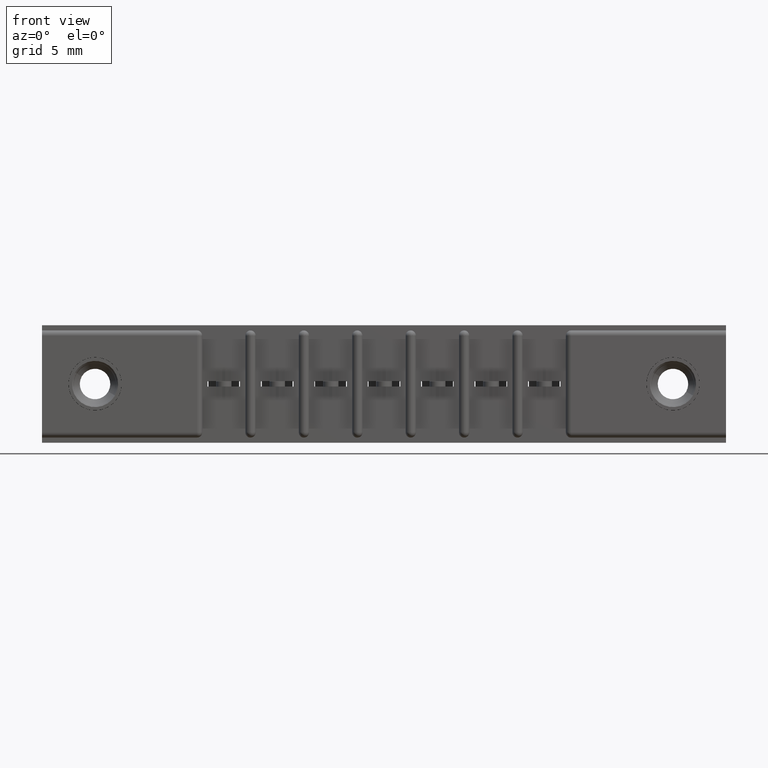
[diagram: clean part render]
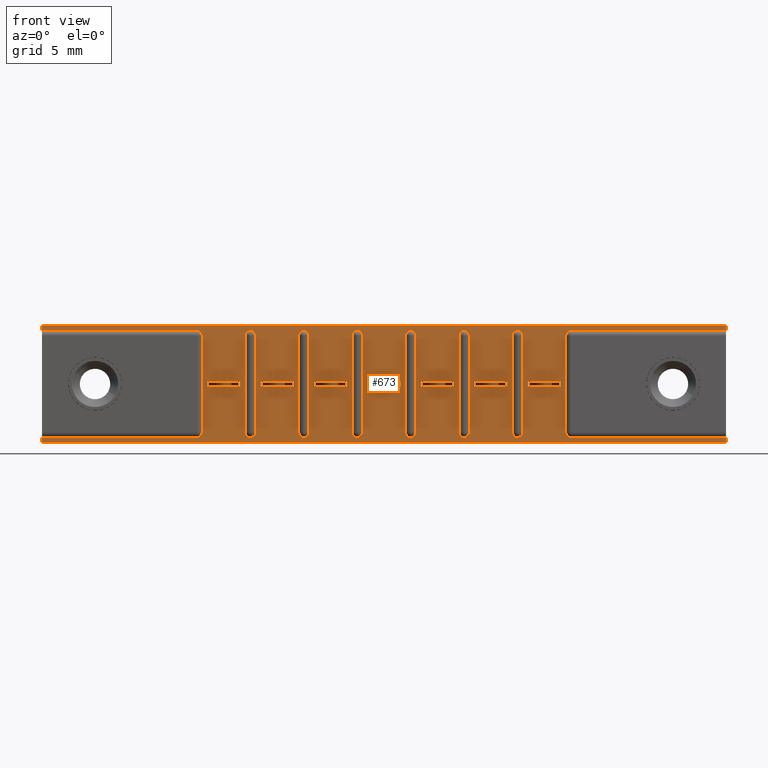
[diagram: same view with one face highlighted and labeled with its STEP entity id]
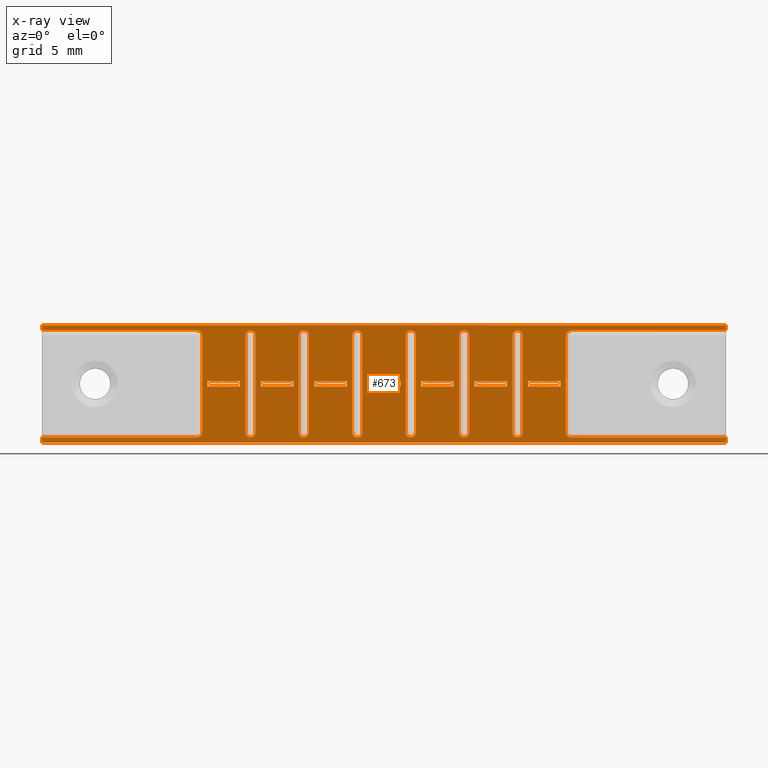
[diagram: x-ray of the same camera — body ghosted, the highlighted face saturated]
A machine part, front view. The second image highlights one B-rep face of the part: STEP entity #673.
The next image is the same camera in x-ray: the body ghosted, the highlighted face saturated — about 0% of this face is hidden behind the body in this view.
In plain terms, the highlighted planar face has unit normal (0, 1, 0).
Its self-contained STEP definition (entity closure, byte-faithful):
#2 = ORIENTED_EDGE ( 'NONE', *, *, #10643, .T. ) ;
#5 = ORIENTED_EDGE ( 'NONE', *, *, #9525, .T. ) ;
#19 = DIRECTION ( 'NONE',  ( 0.0000000000000000000, 0.0000000000000000000, 1.000000000000000000 ) ) ;
#44 = CARTESIAN_POINT ( 'NONE',  ( 0.6090000000000005400, 0.03100000000000000000, -0.3130000000000000600 ) ) ;
#121 = DIRECTION ( 'NONE',  ( 0.0000000000000000000, 1.000000000000000000, 0.0000000000000000000 ) ) ;
#143 = ORIENTED_EDGE ( 'NONE', *, *, #9650, .T. ) ;
#205 = VERTEX_POINT ( 'NONE', #3968 ) ;
#206 = DIRECTION ( 'NONE',  ( 0.0000000000000000000, -0.0000000000000000000, 1.000000000000000000 ) ) ;
#223 = CARTESIAN_POINT ( 'NONE',  ( 1.998000000000000000, 0.03100000000000000000, -0.3280000000000000100 ) ) ;
#233 = ORIENTED_EDGE ( 'NONE', *, *, #10808, .F. ) ;
#294 = DIRECTION ( 'NONE',  ( -1.000000000000000000, -0.0000000000000000000, -0.0000000000000000000 ) ) ;
#305 = VERTEX_POINT ( 'NONE', #1757 ) ;
#311 = DIRECTION ( 'NONE',  ( 1.000000000000000000, -0.0000000000000000000, 0.0000000000000000000 ) ) ;
#335 = CARTESIAN_POINT ( 'NONE',  ( 0.4680000000000005800, 0.03100000000000002400, -0.3280000000000002400 ) ) ;
#356 = DIRECTION ( 'NONE',  ( 0.0000000000000000000, -0.0000000000000000000, 1.000000000000000000 ) ) ;
#357 = VECTOR ( 'NONE', #11683, 39.37007874015748100 ) ;
#367 = ORIENTED_EDGE ( 'NONE', *, *, #9284, .T. ) ;
#382 = FACE_BOUND ( 'NONE', #3022, .T. ) ;
#426 = DIRECTION ( 'NONE',  ( -1.000000000000000000, -0.0000000000000000000, -0.0000000000000000000 ) ) ;
#457 = DIRECTION ( 'NONE',  ( 1.000000000000000000, -0.0000000000000000000, 0.0000000000000000000 ) ) ;
#464 = ORIENTED_EDGE ( 'NONE', *, *, #10022, .T. ) ;
#519 = ORIENTED_EDGE ( 'NONE', *, *, #9113, .T. ) ;
#522 = ORIENTED_EDGE ( 'NONE', *, *, #9863, .T. ) ;
#540 = LINE ( 'NONE', #11960, #5749 ) ;
#541 = CARTESIAN_POINT ( 'NONE',  ( 1.389000000000000700, 0.03100000000000000000, -0.3130000000000000600 ) ) ;
#564 = CARTESIAN_POINT ( 'NONE',  ( 0.5940000000000004200, 0.03100000000000002400, -0.3130000000000000600 ) ) ;
#570 = VECTOR ( 'NONE', #5691, 39.37007874015748100 ) ;
#622 = VERTEX_POINT ( 'NONE', #3373 ) ;
#627 = VERTEX_POINT ( 'NONE', #6545 ) ;
#635 = DIRECTION ( 'NONE',  ( 6.545961646160369700E-016, 0.0000000000000000000, -1.000000000000000000 ) ) ;
#639 = AXIS2_PLACEMENT_3D ( 'NONE', #5846, #11942, #6824 ) ;
#650 = VERTEX_POINT ( 'NONE', #7248 ) ;
#673 = ADVANCED_FACE ( 'NONE', ( #1514, #8721, #1137, #4261, #6235, #3679, #752, #10703, #8424, #5928, #3376, #382, #10483, #8114 ), #6596, .F. ) ;
#701 = ORIENTED_EDGE ( 'NONE', *, *, #8863, .T. ) ;
#730 = LINE ( 'NONE', #10893, #10690 ) ;
#752 = FACE_BOUND ( 'NONE', #2224, .T. ) ;
#766 = DIRECTION ( 'NONE',  ( 1.000000000000000000, -0.0000000000000000000, 0.0000000000000000000 ) ) ;
#819 = DIRECTION ( 'NONE',  ( 0.0000000000000000000, -0.0000000000000000000, 1.000000000000000000 ) ) ;
#910 = LINE ( 'NONE', #8672, #10569 ) ;
#933 = AXIS2_PLACEMENT_3D ( 'NONE', #5597, #11757, #6573 ) ;
#961 = DIRECTION ( 'NONE',  ( 0.0000000000000000000, 0.0000000000000000000, 1.000000000000000000 ) ) ;
#969 = VERTEX_POINT ( 'NONE', #7689 ) ;
#970 = ORIENTED_EDGE ( 'NONE', *, *, #11107, .F. ) ;
#1027 = CARTESIAN_POINT ( 'NONE',  ( 1.998000000000000000, 0.03100000000000000000, -0.3430000000000000300 ) ) ;
#1048 = DIRECTION ( 'NONE',  ( 0.0000000000000000000, 1.000000000000000000, 0.0000000000000000000 ) ) ;
#1113 = VERTEX_POINT ( 'NONE', #4548 ) ;
#1115 = LINE ( 'NONE', #4515, #5903 ) ;
#1117 = DIRECTION ( 'NONE',  ( 6.545961646160369700E-016, 0.0000000000000000000, -1.000000000000000000 ) ) ;
#1130 = CIRCLE ( 'NONE', #11532, 0.01499999999999999900 ) ;
#1137 = FACE_BOUND ( 'NONE', #2389, .T. ) ;
#1140 = ORIENTED_EDGE ( 'NONE', *, *, #9187, .T. ) ;
#1165 = VERTEX_POINT ( 'NONE', #3881 ) ;
#1183 = ORIENTED_EDGE ( 'NONE', *, *, #9221, .T. ) ;
#1212 = ORIENTED_EDGE ( 'NONE', *, *, #11273, .F. ) ;
#1262 = DIRECTION ( 'NONE',  ( 0.0000000000000000000, 0.0000000000000000000, 1.000000000000000000 ) ) ;
#1312 = VERTEX_POINT ( 'NONE', #6048 ) ;
#1331 = CIRCLE ( 'NONE', #4531, 0.01499999999999999900 ) ;
#1336 = DIRECTION ( 'NONE',  ( 1.000000000000000000, -0.0000000000000000000, 0.0000000000000000000 ) ) ;
#1343 = CARTESIAN_POINT ( 'NONE',  ( 0.4835000000000015400, 0.03100000000000000000, -0.1640000000000003700 ) ) ;
#1349 = VERTEX_POINT ( 'NONE', #3587 ) ;
#1415 = CARTESIAN_POINT ( 'NONE',  ( 0.7345000000000017100, 0.03100000000000002400, -0.08150000000000035000 ) ) ;
#1418 = VERTEX_POINT ( 'NONE', #8533 ) ;
#1443 = DIRECTION ( 'NONE',  ( 0.0000000000000000000, 1.000000000000000000, 0.0000000000000000000 ) ) ;
#1461 = VERTEX_POINT ( 'NONE', #8107 ) ;
#1491 = VERTEX_POINT ( 'NONE', #3096 ) ;
#1507 = ORIENTED_EDGE ( 'NONE', *, *, #9390, .T. ) ;
#1514 = FACE_OUTER_BOUND ( 'NONE', #1542, .T. ) ;
#1530 = VERTEX_POINT ( 'NONE', #3849 ) ;
#1533 = DIRECTION ( 'NONE',  ( 0.0000000000000000000, 1.000000000000000000, 0.0000000000000000000 ) ) ;
#1538 = AXIS2_PLACEMENT_3D ( 'NONE', #12093, #7043, #961 ) ;
#1542 = EDGE_LOOP ( 'NONE', ( #3111, #3841, #6827, #5054, #7142, #1713, #7486, #7449, #10775, #10521, #519, #7524, #7073, #3001, #10372, #5021 ) ) ;
#1544 = DIRECTION ( 'NONE',  ( 0.0000000000000000000, 1.000000000000000000, 0.0000000000000000000 ) ) ;
#1553 = EDGE_LOOP ( 'NONE', ( #3366, #464, #4614, #2048, #9297, #6777 ) ) ;
#1574 = CARTESIAN_POINT ( 'NONE',  ( 1.404000000000000400, 0.03100000000000002400, -0.02999999999999998800 ) ) ;
#1646 = DIRECTION ( 'NONE',  ( 0.0000000000000000000, 1.000000000000000000, 0.0000000000000000000 ) ) ;
#1662 = CARTESIAN_POINT ( 'NONE',  ( 0.5940000000000005300, 0.03100000000000002400, -0.02999999999999995400 ) ) ;
#1664 = VERTEX_POINT ( 'NONE', #2689 ) ;
#1685 = CIRCLE ( 'NONE', #11671, 0.01500000000000001200 ) ;
#1713 = ORIENTED_EDGE ( 'NONE', *, *, #8362, .F. ) ;
#1744 = DIRECTION ( 'NONE',  ( 0.0000000000000000000, 0.0000000000000000000, 1.000000000000000000 ) ) ;
#1755 = CARTESIAN_POINT ( 'NONE',  ( 0.6395000000000015100, 0.03100000000000000000, -0.1790000000000003500 ) ) ;
#1757 = CARTESIAN_POINT ( 'NONE',  ( 1.218000000000000400, 0.03100000000000002400, -0.02999999999999995400 ) ) ;
#1777 = VERTEX_POINT ( 'NONE', #1574 ) ;
#1804 = VERTEX_POINT ( 'NONE', #10289 ) ;
#1816 = CARTESIAN_POINT ( 'NONE',  ( 1.202500000000001700, 0.03100000000000002400, -0.08150000000000035000 ) ) ;
#1831 = AXIS2_PLACEMENT_3D ( 'NONE', #7482, #1544, #8407 ) ;
#1846 = VECTOR ( 'NONE', #1336, 39.37007874015748100 ) ;
#1863 = CARTESIAN_POINT ( 'NONE',  ( 0.0000000000000000000, 0.03100000000000000000, -0.01499999999999997700 ) ) ;
#1938 = AXIS2_PLACEMENT_3D ( 'NONE', #7112, #1048, #8003 ) ;
#1944 = EDGE_CURVE ( 'NONE', #205, #5186, #5416, .T. ) ;
#2022 = VECTOR ( 'NONE', #4718, 39.37007874015748100 ) ;
#2048 = ORIENTED_EDGE ( 'NONE', *, *, #10093, .T. ) ;
#2051 = VECTOR ( 'NONE', #9254, 39.37007874015748100 ) ;
#2085 = CARTESIAN_POINT ( 'NONE',  ( 1.233000000000000500, 0.03100000000000000000, -0.3130000000000000600 ) ) ;
#2098 = CARTESIAN_POINT ( 'NONE',  ( 1.046500000000001500, 0.03100000000000002400, -0.1640000000000003700 ) ) ;
#2117 = VERTEX_POINT ( 'NONE', #9625 ) ;
#2170 = DIRECTION ( 'NONE',  ( 0.0000000000000000000, 1.000000000000000000, 0.0000000000000000000 ) ) ;
#2190 = VECTOR ( 'NONE', #11514, 39.37007874015748100 ) ;
#2204 = VERTEX_POINT ( 'NONE', #2897 ) ;
#2219 = DIRECTION ( 'NONE',  ( 0.0000000000000000000, 1.000000000000000000, 0.0000000000000000000 ) ) ;
#2224 = EDGE_LOOP ( 'NONE', ( #4431, #6774, #9994, #2, #2495, #3577 ) ) ;
#2278 = EDGE_LOOP ( 'NONE', ( #4900, #1140, #6701, #7274, #1183, #5405 ) ) ;
#2298 = VERTEX_POINT ( 'NONE', #11114 ) ;
#2300 = CARTESIAN_POINT ( 'NONE',  ( 1.077000000000000200, 0.03100000000000002400, -0.3130000000000000600 ) ) ;
#2316 = CARTESIAN_POINT ( 'NONE',  ( 1.046500000000001500, 0.03100000000000000000, -0.1790000000000003500 ) ) ;
#2337 = EDGE_LOOP ( 'NONE', ( #3306, #4734, #5, #4953, #7012, #7870 ) ) ;
#2342 = VECTOR ( 'NONE', #8465, 39.37007874015748100 ) ;
#2356 = LINE ( 'NONE', #10245, #6841 ) ;
#2363 = ORIENTED_EDGE ( 'NONE', *, *, #11498, .T. ) ;
#2377 = EDGE_LOOP ( 'NONE', ( #6161, #9739, #11740, #11410 ) ) ;
#2389 = EDGE_LOOP ( 'NONE', ( #10326, #367, #6653, #11500, #2891, #1507 ) ) ;
#2413 = LINE ( 'NONE', #223, #10012 ) ;
#2438 = CARTESIAN_POINT ( 'NONE',  ( 0.9360000000000006100, 0.03100000000000002400, -0.3280000000000002400 ) ) ;
#2471 = ORIENTED_EDGE ( 'NONE', *, *, #11002, .F. ) ;
#2487 = VERTEX_POINT ( 'NONE', #12215 ) ;
#2495 = ORIENTED_EDGE ( 'NONE', *, *, #10719, .T. ) ;
#2502 = DIRECTION ( 'NONE',  ( 1.000000000000000000, 0.0000000000000000000, 0.0000000000000000000 ) ) ;
#2506 = CARTESIAN_POINT ( 'NONE',  ( 1.077000000000000400, 0.03100000000000000000, -0.01499999999999997700 ) ) ;
#2512 = VECTOR ( 'NONE', #9674, 39.37007874015748100 ) ;
#2538 = CIRCLE ( 'NONE', #1538, 0.01500000000000001200 ) ;
#2579 = DIRECTION ( 'NONE',  ( 0.0000000000000000000, -0.0000000000000000000, 1.000000000000000000 ) ) ;
#2610 = ORIENTED_EDGE ( 'NONE', *, *, #8923, .F. ) ;
#2689 = CARTESIAN_POINT ( 'NONE',  ( 0.4835000000000015400, 0.03100000000000002400, -0.1640000000000003700 ) ) ;
#2690 = VECTOR ( 'NONE', #6604, 39.37007874015748100 ) ;
#2719 = VECTOR ( 'NONE', #2502, 39.37007874015748100 ) ;
#2726 = ORIENTED_EDGE ( 'NONE', *, *, #9893, .T. ) ;
#2737 = AXIS2_PLACEMENT_3D ( 'NONE', #6359, #121, #7305 ) ;
#2743 = VERTEX_POINT ( 'NONE', #9920 ) ;
#2767 = CARTESIAN_POINT ( 'NONE',  ( 0.8905000000000016200, 0.03100000000000002400, -0.1640000000000003700 ) ) ;
#2801 = DIRECTION ( 'NONE',  ( 0.0000000000000000000, 1.000000000000000000, 0.0000000000000000000 ) ) ;
#2813 = EDGE_LOOP ( 'NONE', ( #5012, #2471, #3517, #970 ) ) ;
#2817 = CARTESIAN_POINT ( 'NONE',  ( 1.374000000000000100, 0.03100000000000002400, -0.3130000000000000600 ) ) ;
#2831 = CARTESIAN_POINT ( 'NONE',  ( 1.389000000000000200, 0.03100000000000000000, -0.3280000000000000100 ) ) ;
#2832 = VECTOR ( 'NONE', #4892, 39.37007874015748100 ) ;
#2848 = CARTESIAN_POINT ( 'NONE',  ( 1.062000000000000500, 0.03100000000000002400, -0.02999999999999995400 ) ) ;
#2869 = VECTOR ( 'NONE', #819, 39.37007874015748100 ) ;
#2880 = ORIENTED_EDGE ( 'NONE', *, *, #11510, .F. ) ;
#2891 = ORIENTED_EDGE ( 'NONE', *, *, #9356, .T. ) ;
#2897 = CARTESIAN_POINT ( 'NONE',  ( 0.7650000000000004600, 0.03100000000000000000, -0.3280000000000000100 ) ) ;
#2899 = LINE ( 'NONE', #11325, #10114 ) ;
#2915 = DIRECTION ( 'NONE',  ( -1.000000000000000000, 0.0000000000000000000, -0.0000000000000000000 ) ) ;
#2926 = VECTOR ( 'NONE', #8293, 39.37007874015748100 ) ;
#2932 = CARTESIAN_POINT ( 'NONE',  ( 0.7650000000000004600, 0.03100000000000000000, -0.3130000000000000600 ) ) ;
#3001 = ORIENTED_EDGE ( 'NONE', *, *, #8306, .T. ) ;
#3005 = AXIS2_PLACEMENT_3D ( 'NONE', #7983, #2170, #8922 ) ;
#3022 = EDGE_LOOP ( 'NONE', ( #4370, #5767, #9192, #6509 ) ) ;
#3045 = CARTESIAN_POINT ( 'NONE',  ( 0.7345000000000017100, 0.03100000000000000000, -0.1790000000000003500 ) ) ;
#3049 = CIRCLE ( 'NONE', #6664, 0.01500000000000001200 ) ;
#3067 = VERTEX_POINT ( 'NONE', #3045 ) ;
#3068 = CARTESIAN_POINT ( 'NONE',  ( 1.998000000000000000, 0.03100000000000000000, 0.0000000000000000000 ) ) ;
#3096 = CARTESIAN_POINT ( 'NONE',  ( 0.7955000000000015400, 0.03100000000000000000, -0.1790000000000003500 ) ) ;
#3111 = ORIENTED_EDGE ( 'NONE', *, *, #9021, .T. ) ;
#3139 = CARTESIAN_POINT ( 'NONE',  ( 0.7800000000000004700, 0.03100000000000002400, -0.02999999999999998800 ) ) ;
#3158 = DIRECTION ( 'NONE',  ( 0.0000000000000000000, 0.0000000000000000000, 1.000000000000000000 ) ) ;
#3222 = LINE ( 'NONE', #11117, #10374 ) ;
#3264 = DIRECTION ( 'NONE',  ( 0.0000000000000000000, 0.0000000000000000000, 1.000000000000000000 ) ) ;
#3306 = ORIENTED_EDGE ( 'NONE', *, *, #9412, .T. ) ;
#3312 = CARTESIAN_POINT ( 'NONE',  ( 1.374000000000000100, 0.03100000000000002400, -0.02999999999999995400 ) ) ;
#3366 = ORIENTED_EDGE ( 'NONE', *, *, #9942, .T. ) ;
#3373 = CARTESIAN_POINT ( 'NONE',  ( 1.202500000000001700, 0.03100000000000000000, -0.1790000000000003500 ) ) ;
#3376 = FACE_BOUND ( 'NONE', #2813, .T. ) ;
#3377 = VERTEX_POINT ( 'NONE', #11376 ) ;
#3381 = DIRECTION ( 'NONE',  ( 0.0000000000000000000, 0.0000000000000000000, 1.000000000000000000 ) ) ;
#3429 = CARTESIAN_POINT ( 'NONE',  ( 0.4835000000000015400, 0.03100000000000000000, -0.1790000000000003500 ) ) ;
#3444 = VERTEX_POINT ( 'NONE', #6345 ) ;
#3463 = CARTESIAN_POINT ( 'NONE',  ( 0.9210000000000004800, 0.03100000000000000000, -0.02999999999999997800 ) ) ;
#3486 = EDGE_LOOP ( 'NONE', ( #2610, #4685, #701, #4508 ) ) ;
#3517 = ORIENTED_EDGE ( 'NONE', *, *, #11019, .T. ) ;
#3523 = CARTESIAN_POINT ( 'NONE',  ( 0.9515000000000015700, 0.03100000000000002400, -0.1640000000000003700 ) ) ;
#3539 = VERTEX_POINT ( 'NONE', #6333 ) ;
#3550 = EDGE_LOOP ( 'NONE', ( #11086, #7913, #6622, #233 ) ) ;
#3577 = ORIENTED_EDGE ( 'NONE', *, *, #10733, .T. ) ;
#3587 = CARTESIAN_POINT ( 'NONE',  ( 1.062000000000000300, 0.03100000000000002400, -0.3130000000000000600 ) ) ;
#3596 = CARTESIAN_POINT ( 'NONE',  ( 1.419500000000001500, 0.03100000000000002400, -0.08150000000000035000 ) ) ;
#3614 = CARTESIAN_POINT ( 'NONE',  ( 1.998000000000000000, 0.03100000000000000000, 0.0000000000000000000 ) ) ;
#3620 = VERTEX_POINT ( 'NONE', #7088 ) ;
#3660 = LINE ( 'NONE', #11715, #10233 ) ;
#3673 = LINE ( 'NONE', #2438, #6230 ) ;
#3674 = ORIENTED_EDGE ( 'NONE', *, *, #11364, .F. ) ;
#3679 = FACE_BOUND ( 'NONE', #1553, .T. ) ;
#3721 = ORIENTED_EDGE ( 'NONE', *, *, #9876, .T. ) ;
#3750 = CARTESIAN_POINT ( 'NONE',  ( 1.046500000000001500, 0.03100000000000002400, -0.08150000000000035000 ) ) ;
#3768 = CARTESIAN_POINT ( 'NONE',  ( 0.7650000000000004600, 0.03100000000000000000, -0.02999999999999997800 ) ) ;
#3821 = VECTOR ( 'NONE', #6766, 39.37007874015748100 ) ;
#3841 = ORIENTED_EDGE ( 'NONE', *, *, #9033, .T. ) ;
#3843 = CIRCLE ( 'NONE', #5840, 0.01500000000000001200 ) ;
#3849 = CARTESIAN_POINT ( 'NONE',  ( 0.5785000000000016800, 0.03100000000000000000, -0.1790000000000003500 ) ) ;
#3858 = DIRECTION ( 'NONE',  ( 0.0000000000000000000, 1.000000000000000000, 0.0000000000000000000 ) ) ;
#3862 = AXIS2_PLACEMENT_3D ( 'NONE', #3768, #10283, #4688 ) ;
#3869 = DIRECTION ( 'NONE',  ( 4.363974430773580900E-016, -0.0000000000000000000, 1.000000000000000000 ) ) ;
#3881 = CARTESIAN_POINT ( 'NONE',  ( 1.998000000000000000, 0.03100000000000000000, -0.01499999999999997700 ) ) ;
#3887 = LINE ( 'NONE', #6615, #8889 ) ;
#3889 = CARTESIAN_POINT ( 'NONE',  ( 0.4680000000000003600, 0.03100000000000002400, -0.02999999999999998800 ) ) ;
#3935 = AXIS2_PLACEMENT_3D ( 'NONE', #10982, #5609, #11761 ) ;
#3938 = DIRECTION ( 'NONE',  ( 0.0000000000000000000, 0.0000000000000000000, 1.000000000000000000 ) ) ;
#3942 = DIRECTION ( 'NONE',  ( 0.0000000000000000000, 1.000000000000000000, 0.0000000000000000000 ) ) ;
#3958 = CARTESIAN_POINT ( 'NONE',  ( 1.107500000000001700, 0.03100000000000002400, -0.08150000000000035000 ) ) ;
#3960 = LINE ( 'NONE', #3596, #6500 ) ;
#3968 = CARTESIAN_POINT ( 'NONE',  ( 1.998000000000000000, 0.03100000000000000000, 0.0000000000000000000 ) ) ;
#3974 = VECTOR ( 'NONE', #8294, 39.37007874015748100 ) ;
#4001 = VERTEX_POINT ( 'NONE', #1863 ) ;
#4008 = LINE ( 'NONE', #11030, #6250 ) ;
#4019 = AXIS2_PLACEMENT_3D ( 'NONE', #11444, #6183, #12171 ) ;
#4102 = LINE ( 'NONE', #1816, #9420 ) ;
#4109 = CIRCLE ( 'NONE', #639, 0.01500000000000001200 ) ;
#4119 = VERTEX_POINT ( 'NONE', #9704 ) ;
#4122 = VECTOR ( 'NONE', #10215, 39.37007874015748100 ) ;
#4195 = DIRECTION ( 'NONE',  ( 0.0000000000000000000, 1.000000000000000000, 0.0000000000000000000 ) ) ;
#4256 = VECTOR ( 'NONE', #9945, 39.37007874015748100 ) ;
#4261 = FACE_BOUND ( 'NONE', #2337, .T. ) ;
#4287 = AXIS2_PLACEMENT_3D ( 'NONE', #4618, #4195, #2579 ) ;
#4342 = VERTEX_POINT ( 'NONE', #11707 ) ;
#4370 = ORIENTED_EDGE ( 'NONE', *, *, #11118, .F. ) ;
#4375 = VECTOR ( 'NONE', #4811, 39.37007874015748100 ) ;
#4391 = VECTOR ( 'NONE', #635, 39.37007874015748100 ) ;
#4402 = LINE ( 'NONE', #5562, #11333 ) ;
#4404 = DIRECTION ( 'NONE',  ( 0.0000000000000000000, 0.0000000000000000000, 1.000000000000000000 ) ) ;
#4431 = ORIENTED_EDGE ( 'NONE', *, *, #10533, .T. ) ;
#4452 = CARTESIAN_POINT ( 'NONE',  ( 0.4835000000000015400, 0.03100000000000000000, -0.1790000000000003500 ) ) ;
#4467 = CARTESIAN_POINT ( 'NONE',  ( 0.6395000000000015100, 0.03100000000000000000, -0.1640000000000003700 ) ) ;
#4492 = CARTESIAN_POINT ( 'NONE',  ( 0.0000000000000000000, 0.03100000000000000000, -0.3430000000000000300 ) ) ;
#4508 = ORIENTED_EDGE ( 'NONE', *, *, #9000, .F. ) ;
#4512 = CARTESIAN_POINT ( 'NONE',  ( 0.0000000000000000000, 0.03100000000000000000, 0.0000000000000000000 ) ) ;
#4515 = CARTESIAN_POINT ( 'NONE',  ( 0.6395000000000017300, 0.03100000000000002400, -0.08150000000000035000 ) ) ;
#4531 = AXIS2_PLACEMENT_3D ( 'NONE', #10291, #4701, #11052 ) ;
#4547 = CIRCLE ( 'NONE', #4967, 0.01499999999999999900 ) ;
#4548 = CARTESIAN_POINT ( 'NONE',  ( 0.9210000000000004800, 0.03100000000000000000, -0.01499999999999997700 ) ) ;
#4554 = CARTESIAN_POINT ( 'NONE',  ( 0.8905000000000016200, 0.03100000000000002400, -0.08150000000000035000 ) ) ;
#4559 = LINE ( 'NONE', #7135, #7425 ) ;
#4599 = CARTESIAN_POINT ( 'NONE',  ( 1.077000000000000200, 0.03100000000000000000, -0.3280000000000000100 ) ) ;
#4614 = ORIENTED_EDGE ( 'NONE', *, *, #10089, .T. ) ;
#4616 = VERTEX_POINT ( 'NONE', #1755 ) ;
#4618 = CARTESIAN_POINT ( 'NONE',  ( 1.998000000000000000, 0.03100000000000000000, -0.3430000000000000300 ) ) ;
#4649 = DIRECTION ( 'NONE',  ( 4.363974430773580900E-016, -0.0000000000000000000, 1.000000000000000000 ) ) ;
#4652 = VERTEX_POINT ( 'NONE', #9557 ) ;
#4674 = LINE ( 'NONE', #11069, #2022 ) ;
#4685 = ORIENTED_EDGE ( 'NONE', *, *, #9020, .F. ) ;
#4688 = DIRECTION ( 'NONE',  ( 0.0000000000000000000, 0.0000000000000000000, 1.000000000000000000 ) ) ;
#4701 = DIRECTION ( 'NONE',  ( 0.0000000000000000000, 1.000000000000000000, 0.0000000000000000000 ) ) ;
#4702 = LINE ( 'NONE', #6448, #2051 ) ;
#4718 = DIRECTION ( 'NONE',  ( 0.0000000000000000000, -0.0000000000000000000, 1.000000000000000000 ) ) ;
#4725 = EDGE_LOOP ( 'NONE', ( #5879, #3674, #2363, #2880 ) ) ;
#4734 = ORIENTED_EDGE ( 'NONE', *, *, #9436, .T. ) ;
#4811 = DIRECTION ( 'NONE',  ( -1.000000000000000000, 0.0000000000000000000, -0.0000000000000000000 ) ) ;
#4843 = DIRECTION ( 'NONE',  ( 0.0000000000000000000, 1.000000000000000000, 0.0000000000000000000 ) ) ;
#4871 = CIRCLE ( 'NONE', #9372, 0.01500000000000001200 ) ;
#4892 = DIRECTION ( 'NONE',  ( -1.000000000000000000, -0.0000000000000000000, -0.0000000000000000000 ) ) ;
#4898 = VERTEX_POINT ( 'NONE', #8888 ) ;
#4900 = ORIENTED_EDGE ( 'NONE', *, *, #9163, .T. ) ;
#4901 = ORIENTED_EDGE ( 'NONE', *, *, #11197, .F. ) ;
#4924 = CARTESIAN_POINT ( 'NONE',  ( 1.404000000000000600, 0.03100000000000002400, -0.3130000000000000600 ) ) ;
#4953 = ORIENTED_EDGE ( 'NONE', *, *, #9527, .T. ) ;
#4967 = AXIS2_PLACEMENT_3D ( 'NONE', #8017, #2219, #8968 ) ;
#5012 = ORIENTED_EDGE ( 'NONE', *, *, #10951, .F. ) ;
#5021 = ORIENTED_EDGE ( 'NONE', *, *, #8419, .F. ) ;
#5046 = CIRCLE ( 'NONE', #9204, 0.01500000000000001200 ) ;
#5054 = ORIENTED_EDGE ( 'NONE', *, *, #9090, .T. ) ;
#5095 = VERTEX_POINT ( 'NONE', #11524 ) ;
#5112 = VERTEX_POINT ( 'NONE', #3429 ) ;
#5133 = CARTESIAN_POINT ( 'NONE',  ( 0.9360000000000005000, 0.03100000000000002400, -0.02999999999999998800 ) ) ;
#5135 = VERTEX_POINT ( 'NONE', #9078 ) ;
#5165 = CIRCLE ( 'NONE', #1938, 0.01499999999999999900 ) ;
#5180 = LINE ( 'NONE', #6066, #7411 ) ;
#5186 = VERTEX_POINT ( 'NONE', #10017 ) ;
#5272 = VERTEX_POINT ( 'NONE', #10132 ) ;
#5276 = CARTESIAN_POINT ( 'NONE',  ( 1.092000000000000500, 0.03100000000000002400, -0.3130000000000000600 ) ) ;
#5303 = LINE ( 'NONE', #10230, #7539 ) ;
#5307 = CARTESIAN_POINT ( 'NONE',  ( 1.062000000000000300, 0.03100000000000002400, -0.3280000000000002400 ) ) ;
#5332 = CARTESIAN_POINT ( 'NONE',  ( 1.514500000000001500, 0.03100000000000002400, -0.1640000000000003700 ) ) ;
#5405 = ORIENTED_EDGE ( 'NONE', *, *, #9226, .T. ) ;
#5413 = CARTESIAN_POINT ( 'NONE',  ( 0.6090000000000004300, 0.03100000000000002400, -0.3130000000000000600 ) ) ;
#5416 = LINE ( 'NONE', #3068, #2832 ) ;
#5440 = DIRECTION ( 'NONE',  ( -1.000000000000000000, 0.0000000000000000000, 0.0000000000000000000 ) ) ;
#5447 = VECTOR ( 'NONE', #766, 39.37007874015748100 ) ;
#5496 = LINE ( 'NONE', #4512, #12149 ) ;
#5502 = DIRECTION ( 'NONE',  ( 1.000000000000000000, -0.0000000000000000000, 0.0000000000000000000 ) ) ;
#5522 = DIRECTION ( 'NONE',  ( -1.000000000000000000, 0.0000000000000000000, -0.0000000000000000000 ) ) ;
#5543 = DIRECTION ( 'NONE',  ( 0.0000000000000000000, -0.0000000000000000000, 1.000000000000000000 ) ) ;
#5562 = CARTESIAN_POINT ( 'NONE',  ( 1.998000000000000000, 0.03100000000000000000, -0.01499999999999997700 ) ) ;
#5570 = CARTESIAN_POINT ( 'NONE',  ( 1.218000000000000400, 0.03100000000000002400, -0.3130000000000000600 ) ) ;
#5597 = CARTESIAN_POINT ( 'NONE',  ( 0.9210000000000003700, 0.03100000000000002400, -0.3130000000000000600 ) ) ;
#5607 = LINE ( 'NONE', #4554, #8097 ) ;
#5609 = DIRECTION ( 'NONE',  ( 0.0000000000000000000, 1.000000000000000000, 0.0000000000000000000 ) ) ;
#5636 = VERTEX_POINT ( 'NONE', #4924 ) ;
#5691 = DIRECTION ( 'NONE',  ( 6.545961646160369700E-016, 0.0000000000000000000, -1.000000000000000000 ) ) ;
#5749 = VECTOR ( 'NONE', #11202, 39.37007874015748100 ) ;
#5767 = ORIENTED_EDGE ( 'NONE', *, *, #11134, .F. ) ;
#5769 = CARTESIAN_POINT ( 'NONE',  ( 1.389000000000000200, 0.03100000000000002400, -0.3130000000000000600 ) ) ;
#5840 = AXIS2_PLACEMENT_3D ( 'NONE', #7556, #1646, #8486 ) ;
#5846 = CARTESIAN_POINT ( 'NONE',  ( 0.7650000000000004600, 0.03100000000000002400, -0.3130000000000000600 ) ) ;
#5871 = CARTESIAN_POINT ( 'NONE',  ( 0.8905000000000016200, 0.03100000000000000000, -0.1790000000000003500 ) ) ;
#5879 = ORIENTED_EDGE ( 'NONE', *, *, #11316, .F. ) ;
#5903 = VECTOR ( 'NONE', #206, 39.37007874015748100 ) ;
#5913 = CARTESIAN_POINT ( 'NONE',  ( 1.263500000000001400, 0.03100000000000000000, -0.1790000000000003500 ) ) ;
#5928 = FACE_BOUND ( 'NONE', #2377, .T. ) ;
#5993 = CARTESIAN_POINT ( 'NONE',  ( 1.514500000000001500, 0.03100000000000002400, -0.08150000000000035000 ) ) ;
#6038 = VERTEX_POINT ( 'NONE', #5570 ) ;
#6048 = CARTESIAN_POINT ( 'NONE',  ( 0.9060000000000003600, 0.03100000000000002400, -0.3130000000000000600 ) ) ;
#6052 = LINE ( 'NONE', #7807, #2512 ) ;
#6066 = CARTESIAN_POINT ( 'NONE',  ( 1.218000000000000400, 0.03100000000000002400, -0.3280000000000002400 ) ) ;
#6076 = CIRCLE ( 'NONE', #7742, 0.01499999999999999900 ) ;
#6161 = ORIENTED_EDGE ( 'NONE', *, *, #10828, .F. ) ;
#6183 = DIRECTION ( 'NONE',  ( 0.0000000000000000000, 1.000000000000000000, 0.0000000000000000000 ) ) ;
#6230 = VECTOR ( 'NONE', #9115, 39.37007874015748100 ) ;
#6235 = FACE_BOUND ( 'NONE', #6996, .T. ) ;
#6240 = LINE ( 'NONE', #7240, #10968 ) ;
#6241 = CARTESIAN_POINT ( 'NONE',  ( 1.077000000000000600, 0.03100000000000000000, -0.3130000000000000600 ) ) ;
#6250 = VECTOR ( 'NONE', #9391, 39.37007874015748100 ) ;
#6265 = CARTESIAN_POINT ( 'NONE',  ( 0.6240000000000005500, 0.03100000000000002400, -0.3280000000000002400 ) ) ;
#6333 = CARTESIAN_POINT ( 'NONE',  ( 1.263500000000001400, 0.03100000000000002400, -0.1640000000000003700 ) ) ;
#6345 = CARTESIAN_POINT ( 'NONE',  ( 0.6395000000000016200, 0.03100000000000002400, -0.1640000000000003700 ) ) ;
#6359 = CARTESIAN_POINT ( 'NONE',  ( 0.9210000000000004800, 0.03100000000000002400, -0.02999999999999998800 ) ) ;
#6384 = CARTESIAN_POINT ( 'NONE',  ( 0.0000000000000000000, 0.03100000000000000000, -0.3430000000000000300 ) ) ;
#6387 = DIRECTION ( 'NONE',  ( 0.0000000000000000000, 0.0000000000000000000, 1.000000000000000000 ) ) ;
#6412 = CARTESIAN_POINT ( 'NONE',  ( 1.389000000000000500, 0.03100000000000000000, -0.01499999999999997700 ) ) ;
#6448 = CARTESIAN_POINT ( 'NONE',  ( 1.530000000000000200, 0.03100000000000002400, -0.3280000000000002400 ) ) ;
#6500 = VECTOR ( 'NONE', #10134, 39.37007874015748100 ) ;
#6509 = ORIENTED_EDGE ( 'NONE', *, *, #11178, .F. ) ;
#6514 = VECTOR ( 'NONE', #7331, 39.37007874015748100 ) ;
#6545 = CARTESIAN_POINT ( 'NONE',  ( 0.7500000000000004400, 0.03100000000000002400, -0.3130000000000000600 ) ) ;
#6573 = DIRECTION ( 'NONE',  ( 0.0000000000000000000, 0.0000000000000000000, 1.000000000000000000 ) ) ;
#6579 = CARTESIAN_POINT ( 'NONE',  ( 0.4530000000000006200, 0.03100000000000000000, -0.3280000000000000100 ) ) ;
#6596 = PLANE ( 'NONE',  #4287 ) ;
#6604 = DIRECTION ( 'NONE',  ( -1.000000000000000000, 0.0000000000000000000, -0.0000000000000000000 ) ) ;
#6615 = CARTESIAN_POINT ( 'NONE',  ( 1.998000000000000000, 0.03100000000000000000, -0.01499999999999997700 ) ) ;
#6622 = ORIENTED_EDGE ( 'NONE', *, *, #10806, .T. ) ;
#6631 = VERTEX_POINT ( 'NONE', #6938 ) ;
#6653 = ORIENTED_EDGE ( 'NONE', *, *, #9332, .T. ) ;
#6664 = AXIS2_PLACEMENT_3D ( 'NONE', #7472, #1533, #8399 ) ;
#6678 = VECTOR ( 'NONE', #10434, 39.37007874015748100 ) ;
#6695 = CIRCLE ( 'NONE', #11211, 0.01499999999999999900 ) ;
#6701 = ORIENTED_EDGE ( 'NONE', *, *, #9188, .T. ) ;
#6723 = VERTEX_POINT ( 'NONE', #2098 ) ;
#6750 = DIRECTION ( 'NONE',  ( 0.0000000000000000000, 0.0000000000000000000, 1.000000000000000000 ) ) ;
#6766 = DIRECTION ( 'NONE',  ( 1.000000000000000000, -0.0000000000000000000, 0.0000000000000000000 ) ) ;
#6774 = ORIENTED_EDGE ( 'NONE', *, *, #10535, .T. ) ;
#6777 = ORIENTED_EDGE ( 'NONE', *, *, #10193, .T. ) ;
#6781 = CARTESIAN_POINT ( 'NONE',  ( 0.7800000000000005800, 0.03100000000000002400, -0.3280000000000002400 ) ) ;
#6798 = VERTEX_POINT ( 'NONE', #1027 ) ;
#6824 = DIRECTION ( 'NONE',  ( 0.0000000000000000000, 0.0000000000000000000, 1.000000000000000000 ) ) ;
#6827 = ORIENTED_EDGE ( 'NONE', *, *, #9038, .T. ) ;
#6841 = VECTOR ( 'NONE', #4649, 39.37007874015748100 ) ;
#6860 = VERTEX_POINT ( 'NONE', #3312 ) ;
#6906 = VERTEX_POINT ( 'NONE', #2316 ) ;
#6934 = CARTESIAN_POINT ( 'NONE',  ( 1.263500000000001400, 0.03100000000000002400, -0.08150000000000035000 ) ) ;
#6938 = CARTESIAN_POINT ( 'NONE',  ( 1.248000000000000200, 0.03100000000000002400, -0.02999999999999998800 ) ) ;
#6970 = LINE ( 'NONE', #7696, #3821 ) ;
#6996 = EDGE_LOOP ( 'NONE', ( #9787, #10166, #143, #522, #3721, #2726 ) ) ;
#7012 = ORIENTED_EDGE ( 'NONE', *, *, #9532, .T. ) ;
#7022 = VERTEX_POINT ( 'NONE', #6412 ) ;
#7035 = VERTEX_POINT ( 'NONE', #3523 ) ;
#7041 = VERTEX_POINT ( 'NONE', #2506 ) ;
#7043 = DIRECTION ( 'NONE',  ( 0.0000000000000000000, 1.000000000000000000, 0.0000000000000000000 ) ) ;
#7073 = ORIENTED_EDGE ( 'NONE', *, *, #7467, .T. ) ;
#7088 = CARTESIAN_POINT ( 'NONE',  ( 0.9210000000000003700, 0.03100000000000000000, -0.3280000000000000100 ) ) ;
#7111 = LINE ( 'NONE', #7311, #1846 ) ;
#7112 = CARTESIAN_POINT ( 'NONE',  ( 0.6090000000000002100, 0.03100000000000000000, -0.02999999999999997800 ) ) ;
#7123 = CIRCLE ( 'NONE', #10747, 0.01500000000000001200 ) ;
#7133 = CIRCLE ( 'NONE', #8112, 0.01500000000000001200 ) ;
#7135 = CARTESIAN_POINT ( 'NONE',  ( 0.4835000000000016000, 0.03100000000000002400, -0.08150000000000035000 ) ) ;
#7138 = AXIS2_PLACEMENT_3D ( 'NONE', #541, #7634, #1744 ) ;
#7142 = ORIENTED_EDGE ( 'NONE', *, *, #9092, .F. ) ;
#7154 = CARTESIAN_POINT ( 'NONE',  ( 0.4530000000000003500, 0.03100000000000000000, -0.01499999999999997700 ) ) ;
#7197 = DIRECTION ( 'NONE',  ( 0.0000000000000000000, 0.0000000000000000000, 1.000000000000000000 ) ) ;
#7240 = CARTESIAN_POINT ( 'NONE',  ( 0.5785000000000016800, 0.03100000000000002400, -0.08150000000000035000 ) ) ;
#7245 = VECTOR ( 'NONE', #457, 39.37007874015748100 ) ;
#7248 = CARTESIAN_POINT ( 'NONE',  ( 1.419500000000001500, 0.03100000000000000000, -0.1790000000000003500 ) ) ;
#7258 = DIRECTION ( 'NONE',  ( 0.0000000000000000000, 1.000000000000000000, 0.0000000000000000000 ) ) ;
#7259 = CIRCLE ( 'NONE', #8281, 0.01499999999999999900 ) ;
#7274 = ORIENTED_EDGE ( 'NONE', *, *, #9205, .T. ) ;
#7295 = VERTEX_POINT ( 'NONE', #2848 ) ;
#7305 = DIRECTION ( 'NONE',  ( 0.0000000000000000000, 0.0000000000000000000, 1.000000000000000000 ) ) ;
#7311 = CARTESIAN_POINT ( 'NONE',  ( 1.419500000000001500, 0.03100000000000000000, -0.1790000000000003500 ) ) ;
#7315 = VERTEX_POINT ( 'NONE', #8577 ) ;
#7331 = DIRECTION ( 'NONE',  ( 4.363974430773580900E-016, 0.0000000000000000000, 1.000000000000000000 ) ) ;
#7386 = DIRECTION ( 'NONE',  ( -1.000000000000000000, -0.0000000000000000000, -0.0000000000000000000 ) ) ;
#7400 = CARTESIAN_POINT ( 'NONE',  ( 1.545000000000000400, 0.03100000000000002400, -0.3130000000000000600 ) ) ;
#7411 = VECTOR ( 'NONE', #8887, 39.37007874015748100 ) ;
#7416 = DIRECTION ( 'NONE',  ( 0.0000000000000000000, 0.0000000000000000000, -1.000000000000000000 ) ) ;
#7425 = VECTOR ( 'NONE', #3264, 39.37007874015748100 ) ;
#7449 = ORIENTED_EDGE ( 'NONE', *, *, #8324, .T. ) ;
#7467 = EDGE_CURVE ( 'NONE', #11571, #4342, #2413, .T. ) ;
#7472 = CARTESIAN_POINT ( 'NONE',  ( 0.9210000000000006000, 0.03100000000000000000, -0.3130000000000000600 ) ) ;
#7482 = CARTESIAN_POINT ( 'NONE',  ( 1.545000000000000600, 0.03100000000000000000, -0.02999999999999997800 ) ) ;
#7486 = ORIENTED_EDGE ( 'NONE', *, *, #1944, .T. ) ;
#7524 = ORIENTED_EDGE ( 'NONE', *, *, #9150, .T. ) ;
#7539 = VECTOR ( 'NONE', #356, 39.37007874015748100 ) ;
#7556 = CARTESIAN_POINT ( 'NONE',  ( 0.4530000000000006200, 0.03100000000000000000, -0.3130000000000000600 ) ) ;
#7626 = CARTESIAN_POINT ( 'NONE',  ( 0.9360000000000006100, 0.03100000000000002400, -0.3130000000000000600 ) ) ;
#7634 = DIRECTION ( 'NONE',  ( 0.0000000000000000000, 1.000000000000000000, 0.0000000000000000000 ) ) ;
#7654 = EDGE_CURVE ( 'NONE', #10575, #4001, #3887, .T. ) ;
#7689 = CARTESIAN_POINT ( 'NONE',  ( 1.202500000000001700, 0.03100000000000002400, -0.1640000000000003700 ) ) ;
#7696 = CARTESIAN_POINT ( 'NONE',  ( 1.107500000000001500, 0.03100000000000000000, -0.1790000000000003500 ) ) ;
#7722 = CARTESIAN_POINT ( 'NONE',  ( 1.092000000000000300, 0.03100000000000002400, -0.02999999999999998800 ) ) ;
#7728 = VERTEX_POINT ( 'NONE', #2831 ) ;
#7742 = AXIS2_PLACEMENT_3D ( 'NONE', #8521, #2801, #9467 ) ;
#7751 = CARTESIAN_POINT ( 'NONE',  ( 0.9515000000000015700, 0.03100000000000000000, -0.1790000000000003500 ) ) ;
#7807 = CARTESIAN_POINT ( 'NONE',  ( 1.263500000000001400, 0.03100000000000000000, -0.1640000000000003700 ) ) ;
#7870 = ORIENTED_EDGE ( 'NONE', *, *, #9548, .T. ) ;
#7913 = ORIENTED_EDGE ( 'NONE', *, *, #10790, .F. ) ;
#7952 = LINE ( 'NONE', #6934, #2869 ) ;
#7957 = VERTEX_POINT ( 'NONE', #3139 ) ;
#7973 = CIRCLE ( 'NONE', #8980, 0.01499999999999999900 ) ;
#7983 = CARTESIAN_POINT ( 'NONE',  ( 1.077000000000000400, 0.03100000000000000000, -0.02999999999999997800 ) ) ;
#7992 = LINE ( 'NONE', #6384, #2926 ) ;
#8003 = DIRECTION ( 'NONE',  ( 0.0000000000000000000, 0.0000000000000000000, 1.000000000000000000 ) ) ;
#8015 = VERTEX_POINT ( 'NONE', #5133 ) ;
#8017 = CARTESIAN_POINT ( 'NONE',  ( 1.077000000000000400, 0.03100000000000002400, -0.02999999999999998800 ) ) ;
#8050 = ORIENTED_EDGE ( 'NONE', *, *, #11247, .F. ) ;
#8061 = CARTESIAN_POINT ( 'NONE',  ( 1.092000000000000500, 0.03100000000000002400, -0.3280000000000002400 ) ) ;
#8097 = VECTOR ( 'NONE', #5543, 39.37007874015748100 ) ;
#8107 = CARTESIAN_POINT ( 'NONE',  ( 1.530000000000000200, 0.03100000000000002400, -0.02999999999999995400 ) ) ;
#8112 = AXIS2_PLACEMENT_3D ( 'NONE', #6241, #12208, #7197 ) ;
#8114 = FACE_BOUND ( 'NONE', #4725, .T. ) ;
#8121 = LINE ( 'NONE', #10100, #11812 ) ;
#8191 = VERTEX_POINT ( 'NONE', #10001 ) ;
#8268 = CIRCLE ( 'NONE', #7138, 0.01500000000000001200 ) ;
#8281 = AXIS2_PLACEMENT_3D ( 'NONE', #9500, #3858, #10344 ) ;
#8293 = DIRECTION ( 'NONE',  ( -0.0000000000000000000, -0.0000000000000000000, -1.000000000000000000 ) ) ;
#8294 = DIRECTION ( 'NONE',  ( 0.0000000000000000000, -0.0000000000000000000, 1.000000000000000000 ) ) ;
#8306 = EDGE_CURVE ( 'NONE', #4342, #9045, #7992, .T. ) ;
#8323 = DIRECTION ( 'NONE',  ( 0.0000000000000000000, 0.0000000000000000000, 1.000000000000000000 ) ) ;
#8324 = EDGE_CURVE ( 'NONE', #5186, #4001, #5496, .T. ) ;
#8362 = EDGE_CURVE ( 'NONE', #205, #1165, #11938, .T. ) ;
#8399 = DIRECTION ( 'NONE',  ( 0.0000000000000000000, 0.0000000000000000000, 1.000000000000000000 ) ) ;
#8406 = LINE ( 'NONE', #4467, #357 ) ;
#8407 = DIRECTION ( 'NONE',  ( 0.0000000000000000000, 0.0000000000000000000, 1.000000000000000000 ) ) ;
#8419 = EDGE_CURVE ( 'NONE', #10861, #6798, #9309, .T. ) ;
#8424 = FACE_BOUND ( 'NONE', #3550, .T. ) ;
#8457 = EDGE_CURVE ( 'NONE', #6798, #9045, #4008, .T. ) ;
#8465 = DIRECTION ( 'NONE',  ( 0.0000000000000000000, -0.0000000000000000000, 1.000000000000000000 ) ) ;
#8467 = VERTEX_POINT ( 'NONE', #1662 ) ;
#8479 = VERTEX_POINT ( 'NONE', #2767 ) ;
#8486 = DIRECTION ( 'NONE',  ( 0.0000000000000000000, 0.0000000000000000000, 1.000000000000000000 ) ) ;
#8521 = CARTESIAN_POINT ( 'NONE',  ( 1.389000000000000500, 0.03100000000000002400, -0.02999999999999998800 ) ) ;
#8533 = CARTESIAN_POINT ( 'NONE',  ( 0.7500000000000005600, 0.03100000000000002400, -0.02999999999999995400 ) ) ;
#8546 = LINE ( 'NONE', #3958, #10810 ) ;
#8576 = CIRCLE ( 'NONE', #9615, 0.01500000000000001200 ) ;
#8577 = CARTESIAN_POINT ( 'NONE',  ( 0.5785000000000016800, 0.03100000000000002400, -0.1640000000000003700 ) ) ;
#8615 = VERTEX_POINT ( 'NONE', #5871 ) ;
#8632 = DIRECTION ( 'NONE',  ( 0.0000000000000000000, -0.0000000000000000000, 1.000000000000000000 ) ) ;
#8655 = DIRECTION ( 'NONE',  ( 6.545961646160369700E-016, 0.0000000000000000000, -1.000000000000000000 ) ) ;
#8672 = CARTESIAN_POINT ( 'NONE',  ( 1.107500000000001500, 0.03100000000000000000, -0.1640000000000003700 ) ) ;
#8686 = CARTESIAN_POINT ( 'NONE',  ( 0.7500000000000004400, 0.03100000000000002400, -0.3280000000000002400 ) ) ;
#8696 = VECTOR ( 'NONE', #5522, 39.37007874015748100 ) ;
#8704 = LINE ( 'NONE', #1415, #3974 ) ;
#8718 = CIRCLE ( 'NONE', #2737, 0.01499999999999999900 ) ;
#8721 = FACE_BOUND ( 'NONE', #2278, .T. ) ;
#8850 = DIRECTION ( 'NONE',  ( 0.0000000000000000000, 1.000000000000000000, 0.0000000000000000000 ) ) ;
#8859 = LINE ( 'NONE', #11828, #570 ) ;
#8863 = EDGE_CURVE ( 'NONE', #5112, #1664, #4559, .T. ) ;
#8887 = DIRECTION ( 'NONE',  ( 4.363974430773580900E-016, -0.0000000000000000000, 1.000000000000000000 ) ) ;
#8888 = CARTESIAN_POINT ( 'NONE',  ( 0.4680000000000005800, 0.03100000000000002400, -0.3130000000000000600 ) ) ;
#8889 = VECTOR ( 'NONE', #426, 39.37007874015748100 ) ;
#8890 = VERTEX_POINT ( 'NONE', #5276 ) ;
#8922 = DIRECTION ( 'NONE',  ( 0.0000000000000000000, 0.0000000000000000000, 1.000000000000000000 ) ) ;
#8923 = EDGE_CURVE ( 'NONE', #1530, #7315, #6240, .T. ) ;
#8968 = DIRECTION ( 'NONE',  ( 0.0000000000000000000, 0.0000000000000000000, 1.000000000000000000 ) ) ;
#8980 = AXIS2_PLACEMENT_3D ( 'NONE', #10386, #4843, #11149 ) ;
#8984 = LINE ( 'NONE', #10822, #6514 ) ;
#9000 = EDGE_CURVE ( 'NONE', #7315, #1664, #12026, .T. ) ;
#9020 = EDGE_CURVE ( 'NONE', #5112, #1530, #10254, .T. ) ;
#9021 = EDGE_CURVE ( 'NONE', #10861, #2298, #8121, .T. ) ;
#9033 = EDGE_CURVE ( 'NONE', #2298, #5272, #5046, .T. ) ;
#9038 = EDGE_CURVE ( 'NONE', #5272, #1461, #4702, .T. ) ;
#9044 = DIRECTION ( 'NONE',  ( 0.0000000000000000000, 1.000000000000000000, 0.0000000000000000000 ) ) ;
#9045 = VERTEX_POINT ( 'NONE', #4492 ) ;
#9078 = CARTESIAN_POINT ( 'NONE',  ( 1.358500000000001400, 0.03100000000000000000, -0.1790000000000003500 ) ) ;
#9090 = EDGE_CURVE ( 'NONE', #1461, #2743, #9721, .T. ) ;
#9092 = EDGE_CURVE ( 'NONE', #1165, #2743, #4402, .T. ) ;
#9095 = EDGE_CURVE ( 'NONE', #10575, #11111, #11573, .T. ) ;
#9112 = LINE ( 'NONE', #10367, #4375 ) ;
#9113 = EDGE_CURVE ( 'NONE', #11111, #4898, #9132, .T. ) ;
#9115 = DIRECTION ( 'NONE',  ( 6.545961646160369700E-016, 0.0000000000000000000, -1.000000000000000000 ) ) ;
#9123 = LINE ( 'NONE', #6781, #4391 ) ;
#9132 = LINE ( 'NONE', #335, #4122 ) ;
#9150 = EDGE_CURVE ( 'NONE', #4898, #11571, #3843, .T. ) ;
#9163 = EDGE_CURVE ( 'NONE', #6860, #7022, #1331, .T. ) ;
#9187 = EDGE_CURVE ( 'NONE', #7022, #1777, #6076, .T. ) ;
#9188 = EDGE_CURVE ( 'NONE', #1777, #5636, #8859, .T. ) ;
#9192 = ORIENTED_EDGE ( 'NONE', *, *, #11167, .T. ) ;
#9204 = AXIS2_PLACEMENT_3D ( 'NONE', #7400, #1443, #8323 ) ;
#9205 = EDGE_CURVE ( 'NONE', #5636, #7728, #8268, .T. ) ;
#9221 = EDGE_CURVE ( 'NONE', #7728, #11085, #8576, .T. ) ;
#9226 = EDGE_CURVE ( 'NONE', #11085, #6860, #3222, .T. ) ;
#9250 = CARTESIAN_POINT ( 'NONE',  ( 1.419500000000001500, 0.03100000000000000000, -0.1640000000000003700 ) ) ;
#9254 = DIRECTION ( 'NONE',  ( 4.363974430773580900E-016, -0.0000000000000000000, 1.000000000000000000 ) ) ;
#9264 = EDGE_CURVE ( 'NONE', #305, #3377, #7973, .T. ) ;
#9284 = EDGE_CURVE ( 'NONE', #3377, #6631, #6695, .T. ) ;
#9285 = VERTEX_POINT ( 'NONE', #7722 ) ;
#9287 = LINE ( 'NONE', #5307, #4256 ) ;
#9297 = ORIENTED_EDGE ( 'NONE', *, *, #10112, .T. ) ;
#9309 = LINE ( 'NONE', #10228, #11225 ) ;
#9332 = EDGE_CURVE ( 'NONE', #6631, #11718, #2899, .T. ) ;
#9334 = EDGE_CURVE ( 'NONE', #11718, #11365, #12132, .T. ) ;
#9356 = EDGE_CURVE ( 'NONE', #11365, #6038, #2538, .T. ) ;
#9372 = AXIS2_PLACEMENT_3D ( 'NONE', #2300, #9044, #3381 ) ;
#9390 = EDGE_CURVE ( 'NONE', #6038, #305, #5180, .T. ) ;
#9391 = DIRECTION ( 'NONE',  ( -1.000000000000000000, -0.0000000000000000000, -0.0000000000000000000 ) ) ;
#9412 = EDGE_CURVE ( 'NONE', #7295, #7041, #11694, .T. ) ;
#9420 = VECTOR ( 'NONE', #8632, 39.37007874015748100 ) ;
#9436 = EDGE_CURVE ( 'NONE', #7041, #9285, #4547, .T. ) ;
#9467 = DIRECTION ( 'NONE',  ( 0.0000000000000000000, 0.0000000000000000000, 1.000000000000000000 ) ) ;
#9477 = ORIENTED_EDGE ( 'NONE', *, *, #11271, .T. ) ;
#9479 = VERTEX_POINT ( 'NONE', #11456 ) ;
#9500 = CARTESIAN_POINT ( 'NONE',  ( 0.7650000000000004600, 0.03100000000000002400, -0.02999999999999998800 ) ) ;
#9525 = EDGE_CURVE ( 'NONE', #9285, #8890, #11446, .T. ) ;
#9527 = EDGE_CURVE ( 'NONE', #8890, #10865, #7133, .T. ) ;
#9532 = EDGE_CURVE ( 'NONE', #10865, #1349, #4871, .T. ) ;
#9533 = VERTEX_POINT ( 'NONE', #10658 ) ;
#9548 = EDGE_CURVE ( 'NONE', #1349, #7295, #9287, .T. ) ;
#9557 = CARTESIAN_POINT ( 'NONE',  ( 1.263500000000001400, 0.03100000000000000000, -0.1790000000000003500 ) ) ;
#9582 = DIRECTION ( 'NONE',  ( 0.0000000000000000000, 1.000000000000000000, 0.0000000000000000000 ) ) ;
#9591 = CARTESIAN_POINT ( 'NONE',  ( 1.233000000000000300, 0.03100000000000002400, -0.02999999999999998800 ) ) ;
#9592 = VECTOR ( 'NONE', #1117, 39.37007874015748100 ) ;
#9615 = AXIS2_PLACEMENT_3D ( 'NONE', #5769, #11889, #6750 ) ;
#9618 = EDGE_CURVE ( 'NONE', #9533, #1113, #1130, .T. ) ;
#9625 = CARTESIAN_POINT ( 'NONE',  ( 0.7800000000000005800, 0.03100000000000002400, -0.3130000000000000600 ) ) ;
#9635 = EDGE_CURVE ( 'NONE', #1113, #8015, #8718, .T. ) ;
#9650 = EDGE_CURVE ( 'NONE', #8015, #10048, #3673, .T. ) ;
#9674 = DIRECTION ( 'NONE',  ( -1.000000000000000000, 0.0000000000000000000, -0.0000000000000000000 ) ) ;
#9699 = LINE ( 'NONE', #10269, #7245 ) ;
#9704 = CARTESIAN_POINT ( 'NONE',  ( 1.514500000000001500, 0.03100000000000000000, -0.1790000000000003500 ) ) ;
#9712 = CIRCLE ( 'NONE', #3862, 0.01499999999999999900 ) ;
#9721 = CIRCLE ( 'NONE', #1831, 0.01499999999999999900 ) ;
#9739 = ORIENTED_EDGE ( 'NONE', *, *, #10834, .F. ) ;
#9775 = VERTEX_POINT ( 'NONE', #10905 ) ;
#9787 = ORIENTED_EDGE ( 'NONE', *, *, #9618, .T. ) ;
#9819 = VECTOR ( 'NONE', #11302, 39.37007874015748100 ) ;
#9863 = EDGE_CURVE ( 'NONE', #10048, #3620, #3049, .T. ) ;
#9876 = EDGE_CURVE ( 'NONE', #3620, #1312, #12017, .T. ) ;
#9886 = VERTEX_POINT ( 'NONE', #10207 ) ;
#9893 = EDGE_CURVE ( 'NONE', #1312, #9533, #2356, .T. ) ;
#9901 = VERTEX_POINT ( 'NONE', #11008 ) ;
#9920 = CARTESIAN_POINT ( 'NONE',  ( 1.545000000000000600, 0.03100000000000000000, -0.01499999999999997700 ) ) ;
#9942 = EDGE_CURVE ( 'NONE', #1418, #9886, #9712, .T. ) ;
#9945 = DIRECTION ( 'NONE',  ( 4.363974430773580900E-016, -0.0000000000000000000, 1.000000000000000000 ) ) ;
#9981 = VECTOR ( 'NONE', #5440, 39.37007874015748100 ) ;
#9994 = ORIENTED_EDGE ( 'NONE', *, *, #10628, .T. ) ;
#10001 = CARTESIAN_POINT ( 'NONE',  ( 0.6090000000000002100, 0.03100000000000000000, -0.01499999999999997700 ) ) ;
#10012 = VECTOR ( 'NONE', #7386, 39.37007874015748100 ) ;
#10015 = DIRECTION ( 'NONE',  ( 0.0000000000000000000, 1.000000000000000000, 0.0000000000000000000 ) ) ;
#10017 = CARTESIAN_POINT ( 'NONE',  ( 0.0000000000000000000, 0.03100000000000000000, 0.0000000000000000000 ) ) ;
#10022 = EDGE_CURVE ( 'NONE', #9886, #7957, #7259, .T. ) ;
#10048 = VERTEX_POINT ( 'NONE', #7626 ) ;
#10089 = EDGE_CURVE ( 'NONE', #7957, #2117, #9123, .T. ) ;
#10093 = EDGE_CURVE ( 'NONE', #2117, #2204, #1685, .T. ) ;
#10100 = CARTESIAN_POINT ( 'NONE',  ( 1.998000000000000000, 0.03100000000000000000, -0.3280000000000000100 ) ) ;
#10112 = EDGE_CURVE ( 'NONE', #2204, #627, #4109, .T. ) ;
#10114 = VECTOR ( 'NONE', #8655, 39.37007874015748100 ) ;
#10118 = DIRECTION ( 'NONE',  ( 0.0000000000000000000, 0.0000000000000000000, -1.000000000000000000 ) ) ;
#10132 = CARTESIAN_POINT ( 'NONE',  ( 1.530000000000000200, 0.03100000000000002400, -0.3130000000000000600 ) ) ;
#10134 = DIRECTION ( 'NONE',  ( 0.0000000000000000000, -0.0000000000000000000, 1.000000000000000000 ) ) ;
#10166 = ORIENTED_EDGE ( 'NONE', *, *, #9635, .T. ) ;
#10193 = EDGE_CURVE ( 'NONE', #627, #1418, #11558, .T. ) ;
#10194 = CARTESIAN_POINT ( 'NONE',  ( 1.998000000000000000, 0.03100000000000000000, -0.3280000000000000100 ) ) ;
#10207 = CARTESIAN_POINT ( 'NONE',  ( 0.7650000000000004600, 0.03100000000000000000, -0.01499999999999997700 ) ) ;
#10215 = DIRECTION ( 'NONE',  ( 6.545961646160369700E-016, 0.0000000000000000000, -1.000000000000000000 ) ) ;
#10228 = CARTESIAN_POINT ( 'NONE',  ( 1.998000000000000000, 0.03100000000000000000, -0.3430000000000000300 ) ) ;
#10230 = CARTESIAN_POINT ( 'NONE',  ( 0.7955000000000016500, 0.03100000000000002400, -0.08150000000000035000 ) ) ;
#10233 = VECTOR ( 'NONE', #311, 39.37007874015748100 ) ;
#10245 = CARTESIAN_POINT ( 'NONE',  ( 0.9060000000000003600, 0.03100000000000002400, -0.3280000000000002400 ) ) ;
#10254 = LINE ( 'NONE', #4452, #2719 ) ;
#10262 = VERTEX_POINT ( 'NONE', #11216 ) ;
#10269 = CARTESIAN_POINT ( 'NONE',  ( 0.9515000000000015700, 0.03100000000000000000, -0.1790000000000003500 ) ) ;
#10283 = DIRECTION ( 'NONE',  ( 0.0000000000000000000, 1.000000000000000000, 0.0000000000000000000 ) ) ;
#10289 = CARTESIAN_POINT ( 'NONE',  ( 0.7345000000000017100, 0.03100000000000002400, -0.1640000000000003700 ) ) ;
#10291 = CARTESIAN_POINT ( 'NONE',  ( 1.389000000000000500, 0.03100000000000000000, -0.02999999999999997800 ) ) ;
#10317 = CARTESIAN_POINT ( 'NONE',  ( 1.248000000000000400, 0.03100000000000002400, -0.3130000000000000600 ) ) ;
#10326 = ORIENTED_EDGE ( 'NONE', *, *, #9264, .T. ) ;
#10344 = DIRECTION ( 'NONE',  ( 0.0000000000000000000, 0.0000000000000000000, 1.000000000000000000 ) ) ;
#10350 = LINE ( 'NONE', #5913, #5447 ) ;
#10367 = CARTESIAN_POINT ( 'NONE',  ( 0.9515000000000015700, 0.03100000000000000000, -0.1640000000000003700 ) ) ;
#10372 = ORIENTED_EDGE ( 'NONE', *, *, #8457, .F. ) ;
#10374 = VECTOR ( 'NONE', #3869, 39.37007874015748100 ) ;
#10386 = CARTESIAN_POINT ( 'NONE',  ( 1.233000000000000800, 0.03100000000000000000, -0.02999999999999997800 ) ) ;
#10388 = VECTOR ( 'NONE', #7416, 39.37007874015748100 ) ;
#10413 = DIRECTION ( 'NONE',  ( 0.0000000000000000000, 0.0000000000000000000, 1.000000000000000000 ) ) ;
#10425 = DIRECTION ( 'NONE',  ( 0.0000000000000000000, -0.0000000000000000000, 1.000000000000000000 ) ) ;
#10434 = DIRECTION ( 'NONE',  ( 4.363974430773580900E-016, -0.0000000000000000000, 1.000000000000000000 ) ) ;
#10469 = LINE ( 'NONE', #10995, #2690 ) ;
#10483 = FACE_BOUND ( 'NONE', #11827, .T. ) ;
#10521 = ORIENTED_EDGE ( 'NONE', *, *, #9095, .T. ) ;
#10533 = EDGE_CURVE ( 'NONE', #8467, #8191, #5165, .T. ) ;
#10535 = EDGE_CURVE ( 'NONE', #8191, #9479, #11910, .T. ) ;
#10569 = VECTOR ( 'NONE', #2915, 39.37007874015748100 ) ;
#10575 = VERTEX_POINT ( 'NONE', #7154 ) ;
#10628 = EDGE_CURVE ( 'NONE', #9479, #9775, #11685, .T. ) ;
#10643 = EDGE_CURVE ( 'NONE', #9775, #2487, #7123, .T. ) ;
#10658 = CARTESIAN_POINT ( 'NONE',  ( 0.9060000000000004700, 0.03100000000000002400, -0.02999999999999995400 ) ) ;
#10666 = VERTEX_POINT ( 'NONE', #5332 ) ;
#10690 = VECTOR ( 'NONE', #5502, 39.37007874015748100 ) ;
#10703 = FACE_BOUND ( 'NONE', #3486, .T. ) ;
#10719 = EDGE_CURVE ( 'NONE', #2487, #11103, #11196, .T. ) ;
#10733 = EDGE_CURVE ( 'NONE', #11103, #8467, #8984, .T. ) ;
#10747 = AXIS2_PLACEMENT_3D ( 'NONE', #44, #7258, #1262 ) ;
#10764 = EDGE_CURVE ( 'NONE', #3067, #1804, #8704, .T. ) ;
#10775 = ORIENTED_EDGE ( 'NONE', *, *, #7654, .F. ) ;
#10790 = EDGE_CURVE ( 'NONE', #4616, #3067, #730, .T. ) ;
#10806 = EDGE_CURVE ( 'NONE', #4616, #3444, #1115, .T. ) ;
#10808 = EDGE_CURVE ( 'NONE', #1804, #3444, #8406, .T. ) ;
#10810 = VECTOR ( 'NONE', #10425, 39.37007874015748100 ) ;
#10822 = CARTESIAN_POINT ( 'NONE',  ( 0.5940000000000004200, 0.03100000000000002400, -0.3280000000000002400 ) ) ;
#10828 = EDGE_CURVE ( 'NONE', #8615, #8479, #5607, .T. ) ;
#10834 = EDGE_CURVE ( 'NONE', #1491, #8615, #3660, .T. ) ;
#10861 = VERTEX_POINT ( 'NONE', #10194 ) ;
#10865 = VERTEX_POINT ( 'NONE', #4599 ) ;
#10881 = DIRECTION ( 'NONE',  ( -1.000000000000000000, -0.0000000000000000000, -0.0000000000000000000 ) ) ;
#10893 = CARTESIAN_POINT ( 'NONE',  ( 0.6395000000000015100, 0.03100000000000000000, -0.1790000000000003500 ) ) ;
#10905 = CARTESIAN_POINT ( 'NONE',  ( 0.6240000000000005500, 0.03100000000000002400, -0.3130000000000000600 ) ) ;
#10919 = EDGE_CURVE ( 'NONE', #1491, #9901, #5303, .T. ) ;
#10936 = LINE ( 'NONE', #9250, #8696 ) ;
#10938 = EDGE_CURVE ( 'NONE', #8479, #9901, #10469, .T. ) ;
#10951 = EDGE_CURVE ( 'NONE', #6906, #6723, #11794, .T. ) ;
#10968 = VECTOR ( 'NONE', #19, 39.37007874015748100 ) ;
#10981 = VERTEX_POINT ( 'NONE', #11809 ) ;
#10982 = CARTESIAN_POINT ( 'NONE',  ( 0.4530000000000004000, 0.03100000000000002400, -0.02999999999999998800 ) ) ;
#10992 = DIRECTION ( 'NONE',  ( -0.0000000000000000000, -0.0000000000000000000, -1.000000000000000000 ) ) ;
#10995 = CARTESIAN_POINT ( 'NONE',  ( 0.7955000000000015400, 0.03100000000000000000, -0.1640000000000003700 ) ) ;
#11002 = EDGE_CURVE ( 'NONE', #11908, #6906, #9699, .T. ) ;
#11008 = CARTESIAN_POINT ( 'NONE',  ( 0.7955000000000016500, 0.03100000000000002400, -0.1640000000000003700 ) ) ;
#11019 = EDGE_CURVE ( 'NONE', #11908, #7035, #4674, .T. ) ;
#11030 = CARTESIAN_POINT ( 'NONE',  ( 1.998000000000000000, 0.03100000000000000000, -0.3430000000000000300 ) ) ;
#11052 = DIRECTION ( 'NONE',  ( 0.0000000000000000000, 0.0000000000000000000, 1.000000000000000000 ) ) ;
#11069 = CARTESIAN_POINT ( 'NONE',  ( 0.9515000000000015700, 0.03100000000000002400, -0.08150000000000035000 ) ) ;
#11085 = VERTEX_POINT ( 'NONE', #2817 ) ;
#11086 = ORIENTED_EDGE ( 'NONE', *, *, #10764, .F. ) ;
#11103 = VERTEX_POINT ( 'NONE', #564 ) ;
#11107 = EDGE_CURVE ( 'NONE', #6723, #7035, #9112, .T. ) ;
#11111 = VERTEX_POINT ( 'NONE', #3889 ) ;
#11114 = CARTESIAN_POINT ( 'NONE',  ( 1.545000000000000400, 0.03100000000000000000, -0.3280000000000000100 ) ) ;
#11117 = CARTESIAN_POINT ( 'NONE',  ( 1.374000000000000100, 0.03100000000000002400, -0.3280000000000002400 ) ) ;
#11118 = EDGE_CURVE ( 'NONE', #622, #969, #4102, .T. ) ;
#11134 = EDGE_CURVE ( 'NONE', #11935, #622, #6970, .T. ) ;
#11149 = DIRECTION ( 'NONE',  ( 0.0000000000000000000, 0.0000000000000000000, 1.000000000000000000 ) ) ;
#11167 = EDGE_CURVE ( 'NONE', #11935, #5095, #8546, .T. ) ;
#11178 = EDGE_CURVE ( 'NONE', #969, #5095, #910, .T. ) ;
#11196 = CIRCLE ( 'NONE', #11795, 0.01500000000000001200 ) ;
#11197 = EDGE_CURVE ( 'NONE', #5135, #10981, #540, .T. ) ;
#11202 = DIRECTION ( 'NONE',  ( 0.0000000000000000000, -0.0000000000000000000, 1.000000000000000000 ) ) ;
#11211 = AXIS2_PLACEMENT_3D ( 'NONE', #9591, #3942, #10413 ) ;
#11216 = CARTESIAN_POINT ( 'NONE',  ( 1.419500000000001500, 0.03100000000000002400, -0.1640000000000003700 ) ) ;
#11219 = CARTESIAN_POINT ( 'NONE',  ( 1.107500000000001500, 0.03100000000000000000, -0.1790000000000003500 ) ) ;
#11225 = VECTOR ( 'NONE', #10992, 39.37007874015748100 ) ;
#11247 = EDGE_CURVE ( 'NONE', #4652, #5135, #10350, .T. ) ;
#11271 = EDGE_CURVE ( 'NONE', #4652, #3539, #7952, .T. ) ;
#11273 = EDGE_CURVE ( 'NONE', #10981, #3539, #6052, .T. ) ;
#11302 = DIRECTION ( 'NONE',  ( 0.0000000000000000000, -0.0000000000000000000, 1.000000000000000000 ) ) ;
#11316 = EDGE_CURVE ( 'NONE', #4119, #10666, #11903, .T. ) ;
#11325 = CARTESIAN_POINT ( 'NONE',  ( 1.248000000000000400, 0.03100000000000002400, -0.3280000000000002400 ) ) ;
#11333 = VECTOR ( 'NONE', #294, 39.37007874015748100 ) ;
#11364 = EDGE_CURVE ( 'NONE', #650, #4119, #7111, .T. ) ;
#11365 = VERTEX_POINT ( 'NONE', #11594 ) ;
#11376 = CARTESIAN_POINT ( 'NONE',  ( 1.233000000000000800, 0.03100000000000000000, -0.01499999999999997700 ) ) ;
#11410 = ORIENTED_EDGE ( 'NONE', *, *, #10938, .F. ) ;
#11444 = CARTESIAN_POINT ( 'NONE',  ( 0.6090000000000003200, 0.03100000000000002400, -0.02999999999999998800 ) ) ;
#11446 = LINE ( 'NONE', #8061, #9592 ) ;
#11456 = CARTESIAN_POINT ( 'NONE',  ( 0.6240000000000003300, 0.03100000000000002400, -0.02999999999999998800 ) ) ;
#11498 = EDGE_CURVE ( 'NONE', #650, #10262, #3960, .T. ) ;
#11500 = ORIENTED_EDGE ( 'NONE', *, *, #9334, .T. ) ;
#11510 = EDGE_CURVE ( 'NONE', #10666, #10262, #10936, .T. ) ;
#11514 = DIRECTION ( 'NONE',  ( 6.545961646160369700E-016, 0.0000000000000000000, -1.000000000000000000 ) ) ;
#11524 = CARTESIAN_POINT ( 'NONE',  ( 1.107500000000001500, 0.03100000000000002400, -0.1640000000000003700 ) ) ;
#11532 = AXIS2_PLACEMENT_3D ( 'NONE', #3463, #10015, #4404 ) ;
#11558 = LINE ( 'NONE', #8686, #6678 ) ;
#11571 = VERTEX_POINT ( 'NONE', #6579 ) ;
#11573 = CIRCLE ( 'NONE', #3935, 0.01499999999999999900 ) ;
#11594 = CARTESIAN_POINT ( 'NONE',  ( 1.233000000000000500, 0.03100000000000000000, -0.3280000000000000100 ) ) ;
#11613 = DIRECTION ( 'NONE',  ( 0.0000000000000000000, 1.000000000000000000, 0.0000000000000000000 ) ) ;
#11671 = AXIS2_PLACEMENT_3D ( 'NONE', #2932, #9582, #3938 ) ;
#11683 = DIRECTION ( 'NONE',  ( -1.000000000000000000, 0.0000000000000000000, -0.0000000000000000000 ) ) ;
#11685 = LINE ( 'NONE', #6265, #2190 ) ;
#11694 = CIRCLE ( 'NONE', #3005, 0.01499999999999999900 ) ;
#11707 = CARTESIAN_POINT ( 'NONE',  ( 0.0000000000000000000, 0.03100000000000000000, -0.3280000000000000100 ) ) ;
#11715 = CARTESIAN_POINT ( 'NONE',  ( 0.7955000000000015400, 0.03100000000000000000, -0.1790000000000003500 ) ) ;
#11718 = VERTEX_POINT ( 'NONE', #10317 ) ;
#11740 = ORIENTED_EDGE ( 'NONE', *, *, #10919, .T. ) ;
#11757 = DIRECTION ( 'NONE',  ( 0.0000000000000000000, 1.000000000000000000, 0.0000000000000000000 ) ) ;
#11761 = DIRECTION ( 'NONE',  ( 0.0000000000000000000, 0.0000000000000000000, 1.000000000000000000 ) ) ;
#11794 = LINE ( 'NONE', #3750, #2342 ) ;
#11795 = AXIS2_PLACEMENT_3D ( 'NONE', #5413, #11613, #6387 ) ;
#11809 = CARTESIAN_POINT ( 'NONE',  ( 1.358500000000001400, 0.03100000000000002400, -0.1640000000000003700 ) ) ;
#11812 = VECTOR ( 'NONE', #10881, 39.37007874015748100 ) ;
#11827 = EDGE_LOOP ( 'NONE', ( #4901, #8050, #9477, #1212 ) ) ;
#11828 = CARTESIAN_POINT ( 'NONE',  ( 1.404000000000000600, 0.03100000000000002400, -0.3280000000000002400 ) ) ;
#11889 = DIRECTION ( 'NONE',  ( 0.0000000000000000000, 1.000000000000000000, 0.0000000000000000000 ) ) ;
#11903 = LINE ( 'NONE', #5993, #9819 ) ;
#11908 = VERTEX_POINT ( 'NONE', #7751 ) ;
#11910 = CIRCLE ( 'NONE', #4019, 0.01499999999999999900 ) ;
#11935 = VERTEX_POINT ( 'NONE', #11219 ) ;
#11938 = LINE ( 'NONE', #3614, #10388 ) ;
#11942 = DIRECTION ( 'NONE',  ( 0.0000000000000000000, 1.000000000000000000, 0.0000000000000000000 ) ) ;
#11960 = CARTESIAN_POINT ( 'NONE',  ( 1.358500000000001400, 0.03100000000000002400, -0.08150000000000035000 ) ) ;
#12017 = CIRCLE ( 'NONE', #933, 0.01500000000000001200 ) ;
#12026 = LINE ( 'NONE', #1343, #9981 ) ;
#12093 = CARTESIAN_POINT ( 'NONE',  ( 1.233000000000000500, 0.03100000000000002400, -0.3130000000000000600 ) ) ;
#12132 = CIRCLE ( 'NONE', #12188, 0.01500000000000001200 ) ;
#12149 = VECTOR ( 'NONE', #10118, 39.37007874015748100 ) ;
#12171 = DIRECTION ( 'NONE',  ( 0.0000000000000000000, 0.0000000000000000000, 1.000000000000000000 ) ) ;
#12188 = AXIS2_PLACEMENT_3D ( 'NONE', #2085, #8850, #3158 ) ;
#12208 = DIRECTION ( 'NONE',  ( 0.0000000000000000000, 1.000000000000000000, 0.0000000000000000000 ) ) ;
#12215 = CARTESIAN_POINT ( 'NONE',  ( 0.6090000000000002100, 0.03100000000000000000, -0.3280000000000000100 ) ) ;